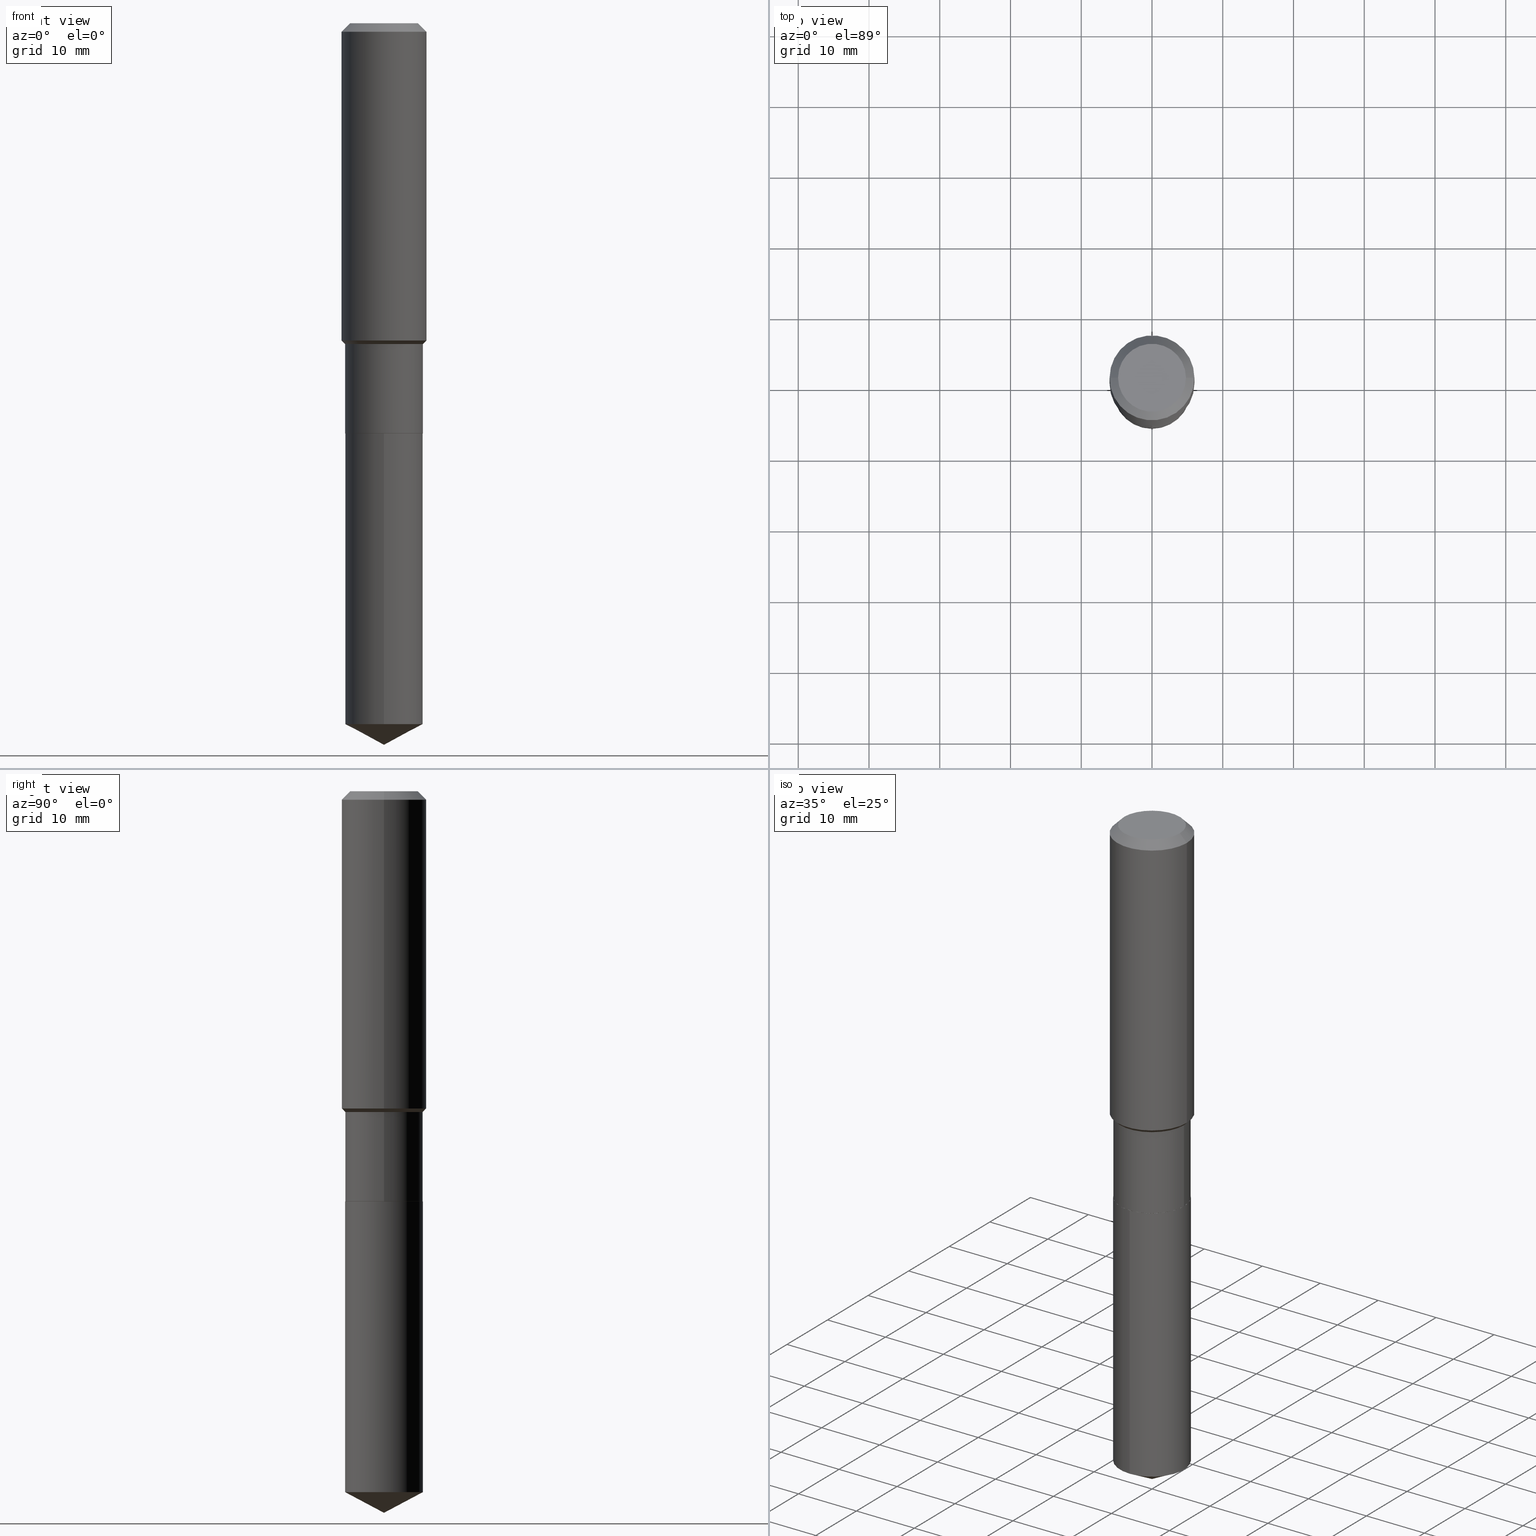
[diagram: canonical four-view strip — front | top / right | iso, engineering-drawing reading convention]
A machine part, canonical four-view strip (front | top / right | iso — engineering-drawing reading convention). The complete STEP part file that produces these views, byte-faithful:
ISO-10303-21;
HEADER;
FILE_DESCRIPTION (( 'STEP AP203' ),
    '1' );
FILE_NAME ('67680.STEP',
    '2024-04-25T09:13:41',
    ( '' ),
    ( '' ),
    'SwSTEP 2.0',
    'SolidWorks 2023',
    '' );
FILE_SCHEMA (( 'CONFIG_CONTROL_DESIGN' ));
ENDSEC;

DATA;
#1 = LINE ( 'NONE', #334, #179 ) ;
#2 = EDGE_LOOP ( 'NONE', ( #228, #254, #69, #374 ) ) ;
#3 = AXIS2_PLACEMENT_3D ( 'NONE', #81, #411, #446 ) ;
#4 = CC_DESIGN_SECURITY_CLASSIFICATION ( #346, ( #55 ) ) ;
#5 = EDGE_CURVE ( 'NONE', #361, #20, #455, .T. ) ;
#6 = CYLINDRICAL_SURFACE ( 'NONE', #468, 0.2165499999999999647 ) ;
#7 = ORIENTED_EDGE ( 'NONE', *, *, #82, .T. ) ;
#8 = PERSON_AND_ORGANIZATION_ROLE ( 'design_owner' ) ;
#9 = ORIENTED_EDGE ( 'NONE', *, *, #33, .F. ) ;
#10 = APPROVAL_STATUS ( 'not_yet_approved' ) ;
#11 = CIRCLE ( 'NONE', #54, 0.1889600000000000168 ) ;
#12 =( NAMED_UNIT ( * ) SI_UNIT ( $, .STERADIAN. ) SOLID_ANGLE_UNIT ( ) );
#13 = LINE ( 'NONE', #47, #466 ) ;
#14 = PERSON_AND_ORGANIZATION ( #187, #431 ) ;
#15 = FACE_OUTER_BOUND ( 'NONE', #120, .T. ) ;
#16 = ORIENTED_EDGE ( 'NONE', *, *, #373, .T. ) ;
#17 = AXIS2_PLACEMENT_3D ( 'NONE', #303, #269, #112 ) ;
#18 = CC_DESIGN_PERSON_AND_ORGANIZATION_ASSIGNMENT ( #122, #424, ( #55 ) ) ;
#19 = CARTESIAN_POINT ( 'NONE',  ( 4.365895459682324685E-29, -6.233341634236667556E-15, -1.785299999999999887 ) ) ;
#20 = VERTEX_POINT ( 'NONE', #115 ) ;
#21 = LINE ( 'NONE', #436, #430 ) ;
#22 = EDGE_CURVE ( 'NONE', #409, #284, #159, .T. ) ;
#23 = ORIENTED_EDGE ( 'NONE', *, *, #162, .F. ) ;
#24 = DIRECTION ( 'NONE',  ( 1.000000000000000000, -6.982962677686271444E-15, 0.000000000000000000 ) ) ;
#25 = AXIS2_PLACEMENT_3D ( 'NONE', #163, #49, #243 ) ;
#26 = ORIENTED_EDGE ( 'NONE', *, *, #386, .F. ) ;
#27 = EDGE_LOOP ( 'NONE', ( #132, #16, #156, #31 ) ) ;
#28 = ADVANCED_FACE ( 'NONE', ( #225 ), #273, .T. ) ;
#29 = LINE ( 'NONE', #150, #60 ) ;
#30 = LINE ( 'NONE', #137, #169 ) ;
#31 = ORIENTED_EDGE ( 'NONE', *, *, #164, .F. ) ;
#32 = DIRECTION ( 'NONE',  ( -2.445468806185136877E-29, 3.491481338843145188E-15, 1.000000000000000000 ) ) ;
#33 = EDGE_CURVE ( 'NONE', #186, #402, #152, .T. ) ;
#34 = ORIENTED_EDGE ( 'NONE', *, *, #190, .F. ) ;
#35 = CARTESIAN_POINT ( 'NONE',  ( -0.1889600000000000168, 1.401969416799070942E-15, 3.855188123706346622E-18 ) ) ;
#36 = DIRECTION ( 'NONE',  ( -1.000000000000000000, 6.982962677686265922E-15, -4.876176775795935793E-29 ) ) ;
#37 = ORIENTED_EDGE ( 'NONE', *, *, #63, .F. ) ;
#38 = DIRECTION ( 'NONE',  ( -2.445558120015569435E-29, 3.491353436354538463E-15, 1.000000000000000000 ) ) ;
#39 = VERTEX_POINT ( 'NONE', #91 ) ;
#40 = CC_DESIGN_PERSON_AND_ORGANIZATION_ASSIGNMENT ( #338, #8, ( #406 ) ) ;
#41 = FACE_OUTER_BOUND ( 'NONE', #289, .T. ) ;
#42 = ORIENTED_EDGE ( 'NONE', *, *, #83, .T. ) ;
#43 = CIRCLE ( 'NONE', #227, 0.2165500000000000203 ) ;
#44 = LOCAL_TIME ( 5, 13, 41.00000000000000000, #432 ) ;
#45 = CARTESIAN_POINT ( 'NONE',  ( 4.317841997640785659E-29, -6.164734025928398916E-15, -1.765649999999999720 ) ) ;
#46 = DIRECTION ( 'NONE',  ( -2.445558120015569435E-29, 3.491353436354538463E-15, 1.000000000000000000 ) ) ;
#47 = CARTESIAN_POINT ( 'NONE',  ( 0.2361999999999999933, -1.785387205520586782E-15, -0.04724000000000028177 ) ) ;
#48 = PERSON_AND_ORGANIZATION ( #187, #431 ) ;
#49 = DIRECTION ( 'NONE',  ( -2.445468806185136597E-29, 3.491481338843145583E-15, 1.000000000000000000 ) ) ;
#50 = CARTESIAN_POINT ( 'NONE',  ( -0.2361999999999999933, 1.484438206022545019E-15, -0.04724000000000028177 ) ) ;
#51 = CARTESIAN_POINT ( 'NONE',  ( 4.365895459682324685E-29, -6.233341634236667556E-15, -1.785299999999999887 ) ) ;
#52 = ADVANCED_FACE ( 'NONE', ( #240 ), #77, .T. ) ;
#53 = AXIS2_PLACEMENT_3D ( 'NONE', #62, #282, #176 ) ;
#54 = AXIS2_PLACEMENT_3D ( 'NONE', #191, #86, #192 ) ;
#55 = PRODUCT_DEFINITION_FORMATION_WITH_SPECIFIED_SOURCE ( 'ANY', '', #406, .NOT_KNOWN. ) ;
#56 = CARTESIAN_POINT ( 'NONE',  ( -0.2160500000000000198, -6.434671681330630643E-15, -2.283399999999999874 ) ) ;
#57 = CARTESIAN_POINT ( 'NONE',  ( 0.2165500000000000203, -9.482863316297978150E-15, -2.282900000000000151 ) ) ;
#58 = VERTEX_POINT ( 'NONE', #57 ) ;
#59 = CC_DESIGN_PERSON_AND_ORGANIZATION_ASSIGNMENT ( #48, #356, ( #405 ) ) ;
#60 = VECTOR ( 'NONE', #230, 39.37007874015748143 ) ;
#61 = DIRECTION ( 'NONE',  ( -6.982962677686265133E-15, -1.000000000000000000, 2.523064413451178124E-15 ) ) ;
#62 = CARTESIAN_POINT ( 'NONE',  ( 0.000000000000000000, 0.000000000000000000, 0.000000000000000000 ) ) ;
#63 = EDGE_CURVE ( 'NONE', #20, #58, #429, .T. ) ;
#64 = ORIENTED_EDGE ( 'NONE', *, *, #198, .T. ) ;
#65 = LINE ( 'NONE', #133, #78 ) ;
#66 = ORIENTED_EDGE ( 'NONE', *, *, #33, .T. ) ;
#67 = DIRECTION ( 'NONE',  ( -6.982962677686265922E-15, -1.000000000000000000, 3.541896320645543908E-15 ) ) ;
#68 = AXIS2_PLACEMENT_3D ( 'NONE', #45, #232, #378 ) ;
#69 = ORIENTED_EDGE ( 'NONE', *, *, #386, .T. ) ;
#70 = CARTESIAN_POINT ( 'NONE',  ( 0.2165499999999999647, -1.512160567852960823E-15, 1.055936080798609895E-29 ) ) ;
#71 = ORIENTED_EDGE ( 'NONE', *, *, #125, .F. ) ;
#72 = ADVANCED_FACE ( 'NONE', ( #315 ), #262, .T. ) ;
#73 = DIRECTION ( 'NONE',  ( 1.000000000000000000, -6.982962677686264344E-15, 0.000000000000000000 ) ) ;
#74 = APPLICATION_PROTOCOL_DEFINITION ( 'international standard', 'config_control_design', 1994, #140 ) ;
#75 = DIRECTION ( 'NONE',  ( -1.000000000000000000, 6.982962677686266711E-15, 0.000000000000000000 ) ) ;
#76 = DIRECTION ( 'NONE',  ( 1.000000000000000000, -6.982962677686266711E-15, 4.876176775795936353E-29 ) ) ;
#77 = CONICAL_SURFACE ( 'NONE', #313, 0.2165499999999999370, 0.7853981633974509435 ) ;
#78 = VECTOR ( 'NONE', #479, 39.37007874015748143 ) ;
#79 = ORIENTED_EDGE ( 'NONE', *, *, #427, .F. ) ;
#80 = CC_DESIGN_APPROVAL ( #375, ( #346 ) ) ;
#81 = CARTESIAN_POINT ( 'NONE',  ( 5.583983472043140562E-29, -7.972448489114438042E-15, -2.283399999999999874 ) ) ;
#82 = EDGE_CURVE ( 'NONE', #102, #58, #30, .T. ) ;
#83 = EDGE_CURVE ( 'NONE', #58, #154, #101, .T. ) ;
#84 = DIRECTION ( 'NONE',  ( 1.000000000000000000, -6.982962677686271444E-15, 0.000000000000000000 ) ) ;
#85 = ORIENTED_EDGE ( 'NONE', *, *, #351, .T. ) ;
#86 = DIRECTION ( 'NONE',  ( -2.445468806185136597E-29, 3.491481338843145583E-15, 1.000000000000000000 ) ) ;
#87 = CARTESIAN_POINT ( 'NONE',  ( 5.583983472043140562E-29, -7.972448489114438042E-15, -2.283399999999999874 ) ) ;
#88 = CIRCLE ( 'NONE', #285, 0.2165500000000000203 ) ;
#89 = PERSON_AND_ORGANIZATION_ROLE ( 'classification_officer' ) ;
#90 = DIRECTION ( 'NONE',  ( -0.7071067811865493491, 7.493145998870360471E-15, 0.7071067811865456854 ) ) ;
#91 = CARTESIAN_POINT ( 'NONE',  ( -1.512160567852865370E-15, -0.2165500000000135927, -3.900558322573707493 ) ) ;
#92 = APPROVAL_DATE_TIME ( #95, #375 ) ;
#93 = APPROVAL_STATUS ( 'not_yet_approved' ) ;
#94 = ADVANCED_FACE ( 'NONE', ( #435 ), #250, .T. ) ;
#95 = DATE_AND_TIME ( #123, #44 ) ;
#96 = CARTESIAN_POINT ( 'NONE',  ( 1.155239464041865506E-30, -1.649375784469511859E-16, -0.04724000000000028177 ) ) ;
#97 = CARTESIAN_POINT ( 'NONE',  ( 9.820627742546521636E-29, -1.402022799436891976E-14, -4.015699999999999825 ) ) ;
#98 = CARTESIAN_POINT ( 'NONE',  ( 5.582760737640048882E-29, -7.970702748445017327E-15, -2.282900000000000151 ) ) ;
#99 = DIRECTION ( 'NONE',  ( -6.982962677686265133E-15, -1.000000000000000000, 3.784596620176766988E-15 ) ) ;
#100 = EDGE_LOOP ( 'NONE', ( #213, #321, #181, #211 ) ) ;
#101 = LINE ( 'NONE', #70, #248 ) ;
#102 = VERTEX_POINT ( 'NONE', #212 ) ;
#103 = DIRECTION ( 'NONE',  ( 1.000000000000000000, -6.982962677686271444E-15, 0.000000000000000000 ) ) ;
#104 = VERTEX_POINT ( 'NONE', #317 ) ;
#105 = DIRECTION ( 'NONE',  ( -0.7071067811865453523, 2.468850131082234184E-15, -0.7071067811865496822 ) ) ;
#106 = EDGE_LOOP ( 'NONE', ( #215, #64, #7, #37 ) ) ;
#107 = ADVANCED_FACE ( 'NONE', ( #210 ), #318, .T. ) ;
#108 = CYLINDRICAL_SURFACE ( 'NONE', #326, 0.2362000000000001043 ) ;
#109 = VERTEX_POINT ( 'NONE', #359 ) ;
#110 = DIRECTION ( 'NONE',  ( 1.000000000000000000, -6.982962677686266711E-15, 4.876176775795935793E-29 ) ) ;
#111 = ORIENTED_EDGE ( 'NONE', *, *, #22, .T. ) ;
#112 = DIRECTION ( 'NONE',  ( 1.000000000000000000, -6.982962677686266711E-15, 0.000000000000000000 ) ) ;
#113 = AXIS2_PLACEMENT_3D ( 'NONE', #19, #252, #185 ) ;
#114 = CIRCLE ( 'NONE', #293, 0.2165499999999999370 ) ;
#115 = CARTESIAN_POINT ( 'NONE',  ( -0.2165500000000000203, -5.563341897052346134E-15, -2.282900000000000151 ) ) ;
#116 = ORIENTED_EDGE ( 'NONE', *, *, #297, .F. ) ;
#117 = DIRECTION ( 'NONE',  ( -2.445468806185136597E-29, 3.491481338843145583E-15, 1.000000000000000000 ) ) ;
#118 = CARTESIAN_POINT ( 'NONE',  ( -9.427742298522546243E-47, 1.346031739168365344E-32, 3.855188123715862256E-18 ) ) ;
#119 = CARTESIAN_POINT ( 'NONE',  ( 5.583983472043140562E-29, -7.972448489114438042E-15, -2.283399999999999874 ) ) ;
#120 = EDGE_LOOP ( 'NONE', ( #71, #183 ) ) ;
#121 =( GEOMETRIC_REPRESENTATION_CONTEXT ( 3 ) GLOBAL_UNCERTAINTY_ASSIGNED_CONTEXT ( ( #339 ) ) GLOBAL_UNIT_ASSIGNED_CONTEXT ( ( #398, #246, #12 ) ) REPRESENTATION_CONTEXT ( 'NONE', 'WORKASPACE' ) );
#122 = PERSON_AND_ORGANIZATION ( #187, #431 ) ;
#123 = CALENDAR_DATE ( 2024, 25, 4 ) ;
#124 = COORDINATED_UNIVERSAL_TIME_OFFSET ( 5, 0, .BEHIND. ) ;
#125 = EDGE_CURVE ( 'NONE', #102, #361, #353, .T. ) ;
#126 = PERSON_AND_ORGANIZATION ( #187, #431 ) ;
#127 = AXIS2_PLACEMENT_3D ( 'NONE', #301, #295, #199 ) ;
#128 = CARTESIAN_POINT ( 'NONE',  ( 5.583983472043140562E-29, -7.972448489114438042E-15, -2.283399999999999874 ) ) ;
#129 = APPROVAL_DATE_TIME ( #202, #478 ) ;
#130 = EDGE_CURVE ( 'NONE', #379, #104, #178, .T. ) ;
#131 = CARTESIAN_POINT ( 'NONE',  ( 9.538838139164029954E-29, -1.361851975576149405E-14, -3.900558322573707937 ) ) ;
#132 = ORIENTED_EDGE ( 'NONE', *, *, #146, .T. ) ;
#133 = CARTESIAN_POINT ( 'NONE',  ( 0.2362000000000001043, -1.649375784469496920E-15, 1.151752954443000508E-29 ) ) ;
#134 = ORIENTED_EDGE ( 'NONE', *, *, #287, .F. ) ;
#135 = CARTESIAN_POINT ( 'NONE',  ( 5.583983472043140562E-29, -7.972448489114438042E-15, -2.283399999999999874 ) ) ;
#136 = EDGE_LOOP ( 'NONE', ( #111, #400 ) ) ;
#137 = CARTESIAN_POINT ( 'NONE',  ( 0.2160500000000000198, -9.481117575628557435E-15, -2.283399999999999874 ) ) ;
#138 = EDGE_CURVE ( 'NONE', #402, #379, #65, .T. ) ;
#139 = VERTEX_POINT ( 'NONE', #222 ) ;
#140 = APPLICATION_CONTEXT ( 'configuration controlled 3d designs of mechanical parts and assemblies' ) ;
#141 = FACE_OUTER_BOUND ( 'NONE', #447, .T. ) ;
#142 = CONICAL_SURFACE ( 'NONE', #208, 74.04434902938389484, 1.082104136236488490 ) ;
#143 = CARTESIAN_POINT ( 'NONE',  ( 0.000000000000000000, 0.000000000000000000, 0.000000000000000000 ) ) ;
#144 = EDGE_LOOP ( 'NONE', ( #476, #223, #261, #236 ) ) ;
#145 = ORIENTED_EDGE ( 'NONE', *, *, #63, .T. ) ;
#146 = EDGE_CURVE ( 'NONE', #154, #109, #444, .T. ) ;
#147 = FACE_OUTER_BOUND ( 'NONE', #144, .T. ) ;
#148 = DIRECTION ( 'NONE',  ( 2.438088387897960049E-29, -3.491481338843145188E-15, -1.000000000000000000 ) ) ;
#149 = VERTEX_POINT ( 'NONE', #360 ) ;
#150 = CARTESIAN_POINT ( 'NONE',  ( -0.2165499999999999647, 1.538680294288496702E-15, -1.065195393794699783E-29 ) ) ;
#151 = CYLINDRICAL_SURFACE ( 'NONE', #127, 0.2165500000000000203 ) ;
#152 = CIRCLE ( 'NONE', #283, 0.2362000000000002153 ) ;
#153 = DIRECTION ( 'NONE',  ( -6.982962677686265133E-15, -1.000000000000000000, 2.523064413451178124E-15 ) ) ;
#154 = VERTEX_POINT ( 'NONE', #484 ) ;
#155 = DESIGN_CONTEXT ( 'detailed design', #229, 'design' ) ;
#156 = ORIENTED_EDGE ( 'NONE', *, *, #332, .F. ) ;
#157 = CC_DESIGN_PERSON_AND_ORGANIZATION_ASSIGNMENT ( #206, #348, ( #55 ) ) ;
#158 = CALENDAR_DATE ( 2024, 25, 4 ) ;
#159 = CIRCLE ( 'NONE', #452, 0.1889600000000000168 ) ;
#160 = AXIS2_PLACEMENT_3D ( 'NONE', #143, #188, #76 ) ;
#161 = DIRECTION ( 'NONE',  ( 1.000000000000000000, -6.982962677686266711E-15, 0.000000000000000000 ) ) ;
#162 = EDGE_CURVE ( 'NONE', #39, #139, #242, .T. ) ;
#163 = CARTESIAN_POINT ( 'NONE',  ( 5.583983472043140562E-29, -7.972448489114438042E-15, -2.283399999999999874 ) ) ;
#164 = EDGE_CURVE ( 'NONE', #154, #402, #21, .T. ) ;
#165 = PLANE ( 'NONE',  #255 ) ;
#166 = LENGTH_MEASURE_WITH_UNIT ( LENGTH_MEASURE( 0.02539999999999999897 ), #393 );
#167 = APPLICATION_PROTOCOL_DEFINITION ( 'international standard', 'config_control_design', 1994, #229 ) ;
#168 = DIRECTION ( 'NONE',  ( 0.7071067811865453523, -7.319954787623248157E-15, -0.7071067811865496822 ) ) ;
#169 = VECTOR ( 'NONE', #407, 39.37007874015748143 ) ;
#170 = VECTOR ( 'NONE', #490, 39.37007874015748854 ) ;
#171 = MANIFOLD_SOLID_BREP ( 'Body-Move/Copy2[2]', #473 ) ;
#172 = CC_DESIGN_APPROVAL ( #458, ( #55 ) ) ;
#173 = FACE_OUTER_BOUND ( 'NONE', #2, .T. ) ;
#174 = DIRECTION ( 'NONE',  ( -2.445558120015569435E-29, 3.491353436354538463E-15, 1.000000000000000000 ) ) ;
#175 = ORIENTED_EDGE ( 'NONE', *, *, #279, .T. ) ;
#176 = DIRECTION ( 'NONE',  ( 1.000000000000000000, -6.982962677686266711E-15, 4.876176775795935793E-29 ) ) ;
#177 = ORIENTED_EDGE ( 'NONE', *, *, #397, .F. ) ;
#178 = CIRCLE ( 'NONE', #217, 0.2361999999999999933 ) ;
#179 = VECTOR ( 'NONE', #184, 39.37007874015748143 ) ;
#180 = FACE_OUTER_BOUND ( 'NONE', #482, .T. ) ;
#181 = ORIENTED_EDGE ( 'NONE', *, *, #146, .F. ) ;
#182 = EDGE_CURVE ( 'NONE', #139, #299, #474, .T. ) ;
#183 = ORIENTED_EDGE ( 'NONE', *, *, #198, .F. ) ;
#184 = DIRECTION ( 'NONE',  ( -2.445558120015569435E-29, 3.491353436354538463E-15, 1.000000000000000000 ) ) ;
#185 = DIRECTION ( 'NONE',  ( 1.000000000000000000, -6.982962677686266711E-15, 0.000000000000000000 ) ) ;
#186 = VERTEX_POINT ( 'NONE', #439 ) ;
#187 = PERSON ( 'UNSPECIFIED', 'UNSPECIFIED', 'UNSPECIFIED', ('UNSPECIFIED'), ('UNSPECIFIED'), ('UNSPECIFIED') ) ;
#188 = DIRECTION ( 'NONE',  ( -2.445468806185136597E-29, 3.491481338843145583E-15, 1.000000000000000000 ) ) ;
#189 = ORIENTED_EDGE ( 'NONE', *, *, #279, .F. ) ;
#190 = EDGE_CURVE ( 'NONE', #149, #299, #453, .T. ) ;
#191 = CARTESIAN_POINT ( 'NONE',  ( -9.427742298522546243E-47, 1.346031739168365344E-32, 3.855188123715862256E-18 ) ) ;
#192 = DIRECTION ( 'NONE',  ( 1.000000000000000000, -6.982962677686266711E-15, 4.876185090822587894E-29 ) ) ;
#193 = PLANE ( 'NONE',  #475 ) ;
#194 = AXIS2_PLACEMENT_3D ( 'NONE', #364, #214, #324 ) ;
#195 = CIRCLE ( 'NONE', #422, 0.2165500000000000203 ) ;
#196 = ORIENTED_EDGE ( 'NONE', *, *, #463, .T. ) ;
#197 = DIRECTION ( 'NONE',  ( 1.000000000000000000, 0.000000000000000000, 0.000000000000000000 ) ) ;
#198 = EDGE_CURVE ( 'NONE', #361, #102, #437, .T. ) ;
#199 = DIRECTION ( 'NONE',  ( -6.982962677686265133E-15, -1.000000000000000000, 3.784596620176766988E-15 ) ) ;
#200 = EDGE_LOOP ( 'NONE', ( #441, #489, #267, #258 ) ) ;
#201 = DIRECTION ( 'NONE',  ( -2.438088387897960049E-29, 3.491481338843145188E-15, 1.000000000000000000 ) ) ;
#202 = DATE_AND_TIME ( #434, #396 ) ;
#203 = ADVANCED_FACE ( 'NONE', ( #180 ), #450, .F. ) ;
#204 = DIRECTION ( 'NONE',  ( -1.000000000000000000, 6.982962677686266711E-15, 0.000000000000000000 ) ) ;
#205 = APPROVAL_PERSON_ORGANIZATION ( #280, #478, #275 ) ;
#206 = PERSON_AND_ORGANIZATION ( #187, #431 ) ;
#207 = DIRECTION ( 'NONE',  ( -6.982962677686265133E-15, -1.000000000000000000, 3.784596620176766988E-15 ) ) ;
#208 = AXIS2_PLACEMENT_3D ( 'NONE', #413, #327, #221 ) ;
#209 = LOCAL_TIME ( 5, 13, 41.00000000000000000, #124 ) ;
#210 = FACE_OUTER_BOUND ( 'NONE', #445, .T. ) ;
#211 = ORIENTED_EDGE ( 'NONE', *, *, #83, .F. ) ;
#212 = CARTESIAN_POINT ( 'NONE',  ( 0.2160500000000000198, -9.481117575628557435E-15, -2.283399999999999874 ) ) ;
#213 = ORIENTED_EDGE ( 'NONE', *, *, #391, .T. ) ;
#214 = DIRECTION ( 'NONE',  ( -2.445468806185136597E-29, 3.491481338843145583E-15, 1.000000000000000000 ) ) ;
#215 = ORIENTED_EDGE ( 'NONE', *, *, #5, .F. ) ;
#216 = EDGE_CURVE ( 'NONE', #342, #39, #369, .T. ) ;
#217 = AXIS2_PLACEMENT_3D ( 'NONE', #247, #290, #219 ) ;
#218 = CIRCLE ( 'NONE', #17, 0.2361999999999999933 ) ;
#219 = DIRECTION ( 'NONE',  ( 1.000000000000000000, -6.982962677686266711E-15, 0.000000000000000000 ) ) ;
#220 = EDGE_LOOP ( 'NONE', ( #302, #196, #23 ) ) ;
#221 = DIRECTION ( 'NONE',  ( -6.982962677686265922E-15, -1.000000000000000000, 3.541896320645543908E-15 ) ) ;
#222 = CARTESIAN_POINT ( 'NONE',  ( 1.538680294288591957E-15, 0.2165499999999863368, -3.900558322573708381 ) ) ;
#223 = ORIENTED_EDGE ( 'NONE', *, *, #5, .T. ) ;
#224 = LINE ( 'NONE', #483, #461 ) ;
#225 = FACE_OUTER_BOUND ( 'NONE', #337, .T. ) ;
#226 = MECHANICAL_CONTEXT ( 'NONE', #140, 'mechanical' ) ;
#227 = AXIS2_PLACEMENT_3D ( 'NONE', #418, #268, #73 ) ;
#228 = ORIENTED_EDGE ( 'NONE', *, *, #343, .F. ) ;
#229 = APPLICATION_CONTEXT ( 'configuration controlled 3d designs of mechanical parts and assemblies' ) ;
#230 = DIRECTION ( 'NONE',  ( -2.445468806185136877E-29, 3.491481338843145188E-15, 1.000000000000000000 ) ) ;
#231 = CARTESIAN_POINT ( 'NONE',  ( 0.2362000000000002153, -7.814109810397897019E-15, -1.765649999999999720 ) ) ;
#232 = DIRECTION ( 'NONE',  ( -2.445468806185136597E-29, 3.491481338843145583E-15, 1.000000000000000000 ) ) ;
#233 = ADVANCED_FACE ( 'NONE', ( #372 ), #193, .F. ) ;
#234 = DIRECTION ( 'NONE',  ( -6.165590087286841551E-15, -0.8829475928589272105, 0.4694715627858901952 ) ) ;
#235 = AXIS2_PLACEMENT_3D ( 'NONE', #135, #471, #99 ) ;
#236 = ORIENTED_EDGE ( 'NONE', *, *, #82, .F. ) ;
#237 = DIRECTION ( 'NONE',  ( 1.000000000000000000, -6.982962677686266711E-15, 0.000000000000000000 ) ) ;
#238 = LINE ( 'NONE', #50, #390 ) ;
#239 = CC_DESIGN_DATE_AND_TIME_ASSIGNMENT ( #309, #308, ( #405 ) ) ;
#240 = FACE_OUTER_BOUND ( 'NONE', #27, .T. ) ;
#241 = DIRECTION ( 'NONE',  ( -2.445468806185136597E-29, 3.491481338843145583E-15, 1.000000000000000000 ) ) ;
#242 = CIRCLE ( 'NONE', #370, 0.2165500000000000203 ) ;
#243 = DIRECTION ( 'NONE',  ( 1.000000000000000000, -6.982962677686271444E-15, 0.000000000000000000 ) ) ;
#244 = APPROVAL_STATUS ( 'not_yet_approved' ) ;
#245 = PRODUCT_RELATED_PRODUCT_CATEGORY ( 'detail', '', ( #406 ) ) ;
#246 =( NAMED_UNIT ( * ) PLANE_ANGLE_UNIT ( ) SI_UNIT ( $, .RADIAN. ) );
#247 = CARTESIAN_POINT ( 'NONE',  ( 1.155239464041865506E-30, -1.649375784469511859E-16, -0.04724000000000028177 ) ) ;
#248 = VECTOR ( 'NONE', #399, 39.37007874015748143 ) ;
#249 = AXIS2_PLACEMENT_3D ( 'NONE', #288, #401, #24 ) ;
#250 = CYLINDRICAL_SURFACE ( 'NONE', #53, 0.2362000000000001043 ) ;
#251 = ADVANCED_FACE ( 'NONE', ( #333 ), #341, .T. ) ;
#252 = DIRECTION ( 'NONE',  ( -2.445468806185136597E-29, 3.491481338843145583E-15, 1.000000000000000000 ) ) ;
#253 = CARTESIAN_POINT ( 'NONE',  ( 1.538680294288552514E-15, 0.2165499999999920544, -2.283400000000000762 ) ) ;
#254 = ORIENTED_EDGE ( 'NONE', *, *, #22, .F. ) ;
#255 = AXIS2_PLACEMENT_3D ( 'NONE', #128, #201, #306 ) ;
#256 = APPROVAL_PERSON_ORGANIZATION ( #311, #458, #462 ) ;
#257 = LOCAL_TIME ( 5, 13, 41.00000000000000000, #305 ) ;
#258 = ORIENTED_EDGE ( 'NONE', *, *, #351, .F. ) ;
#259 = DIRECTION ( 'NONE',  ( 2.445468806185136597E-29, -3.491481338843145583E-15, -1.000000000000000000 ) ) ;
#260 = CARTESIAN_POINT ( 'NONE',  ( 1.538680294288592549E-15, 0.2165499999999920544, -2.283400000000000762 ) ) ;
#261 = ORIENTED_EDGE ( 'NONE', *, *, #391, .F. ) ;
#262 = CONICAL_SURFACE ( 'NONE', #300, 74.04434902938389484, 1.082104136236488490 ) ;
#263 = FACE_OUTER_BOUND ( 'NONE', #220, .T. ) ;
#264 = CIRCLE ( 'NONE', #68, 0.2362000000000002153 ) ;
#265 = FACE_OUTER_BOUND ( 'NONE', #330, .T. ) ;
#266 = CONICAL_SURFACE ( 'NONE', #371, 0.2361999999999999933, 0.7853981633974452814 ) ;
#267 = ORIENTED_EDGE ( 'NONE', *, *, #427, .T. ) ;
#268 = DIRECTION ( 'NONE',  ( -2.445468806185136597E-29, 3.491481338843145583E-15, 1.000000000000000000 ) ) ;
#269 = DIRECTION ( 'NONE',  ( -2.445468806185136597E-29, 3.491481338843145583E-15, 1.000000000000000000 ) ) ;
#270 = EDGE_CURVE ( 'NONE', #104, #379, #218, .T. ) ;
#271 = DIRECTION ( 'NONE',  ( -2.445468806185136597E-29, 3.491481338843145583E-15, 1.000000000000000000 ) ) ;
#272 = DIRECTION ( 'NONE',  ( 1.000000000000000000, -6.982962677686266711E-15, 4.876185090822587894E-29 ) ) ;
#273 = CYLINDRICAL_SURFACE ( 'NONE', #485, 0.2165500000000000203 ) ;
#274 = COORDINATED_UNIVERSAL_TIME_OFFSET ( 5, 0, .BEHIND. ) ;
#275 = APPROVAL_ROLE ( '' ) ;
#276 = SHAPE_DEFINITION_REPRESENTATION ( #454, #385 ) ;
#277 = DATE_AND_TIME ( #465, #363 ) ;
#278 = LINE ( 'NONE', #425, #395 ) ;
#279 = EDGE_CURVE ( 'NONE', #109, #154, #114, .T. ) ;
#280 = PERSON_AND_ORGANIZATION ( #187, #431 ) ;
#281 = DIRECTION ( 'NONE',  ( 0.7071067811865493491, -2.468850131082276388E-15, 0.7071067811865456854 ) ) ;
#282 = DIRECTION ( 'NONE',  ( -2.445468806185136597E-29, 3.491481338843145583E-15, 1.000000000000000000 ) ) ;
#283 = AXIS2_PLACEMENT_3D ( 'NONE', #469, #241, #237 ) ;
#284 = VERTEX_POINT ( 'NONE', #449 ) ;
#285 = AXIS2_PLACEMENT_3D ( 'NONE', #414, #38, #153 ) ;
#286 = ADVANCED_FACE ( 'NONE', ( #265 ), #108, .T. ) ;
#287 = EDGE_CURVE ( 'NONE', #139, #39, #88, .T. ) ;
#288 = CARTESIAN_POINT ( 'NONE',  ( 5.583983472043140562E-29, -7.972448489114438042E-15, -2.283399999999999874 ) ) ;
#289 = EDGE_LOOP ( 'NONE', ( #177, #145, #42, #189 ) ) ;
#290 = DIRECTION ( 'NONE',  ( -2.445468806185136597E-29, 3.491481338843145583E-15, 1.000000000000000000 ) ) ;
#291 = ORIENTED_EDGE ( 'NONE', *, *, #138, .T. ) ;
#292 = ORIENTED_EDGE ( 'NONE', *, *, #463, .F. ) ;
#293 = AXIS2_PLACEMENT_3D ( 'NONE', #456, #271, #336 ) ;
#294 = CARTESIAN_POINT ( 'NONE',  ( 1.155239464041865506E-30, -1.649375784469511859E-16, -0.04724000000000028177 ) ) ;
#295 = DIRECTION ( 'NONE',  ( -2.445558120015569435E-29, 3.491353436354538463E-15, 1.000000000000000000 ) ) ;
#296 = ORIENTED_EDGE ( 'NONE', *, *, #433, .T. ) ;
#297 = EDGE_CURVE ( 'NONE', #284, #409, #11, .T. ) ;
#298 = CARTESIAN_POINT ( 'NONE',  ( -4.713871149261273121E-47, 6.730158695841826722E-33, 1.927594061857931128E-18 ) ) ;
#299 = VERTEX_POINT ( 'NONE', #260 ) ;
#300 = AXIS2_PLACEMENT_3D ( 'NONE', #367, #481, #67 ) ;
#301 = CARTESIAN_POINT ( 'NONE',  ( 5.583983472043140562E-29, -7.972448489114438042E-15, -2.283399999999999874 ) ) ;
#302 = ORIENTED_EDGE ( 'NONE', *, *, #216, .F. ) ;
#303 = CARTESIAN_POINT ( 'NONE',  ( 1.155239464041865506E-30, -1.649375784469511859E-16, -0.04724000000000028177 ) ) ;
#304 = CARTESIAN_POINT ( 'NONE',  ( -0.2160500000000000198, -6.437320908504741844E-15, -2.283399999999999874 ) ) ;
#305 = COORDINATED_UNIVERSAL_TIME_OFFSET ( 5, 0, .BEHIND. ) ;
#306 = DIRECTION ( 'NONE',  ( 1.000000000000000000, -6.982962677686265922E-15, 4.876176775795935793E-29 ) ) ;
#307 = CONICAL_SURFACE ( 'NONE', #345, 0.2361999999999999933, 0.7853981633974452814 ) ;
#308 = DATE_TIME_ROLE ( 'creation_date' ) ;
#309 = DATE_AND_TIME ( #350, #209 ) ;
#310 = CARTESIAN_POINT ( 'NONE',  ( 0.2361999999999999933, -1.814313362916447440E-15, -0.04724000000000028177 ) ) ;
#311 = PERSON_AND_ORGANIZATION ( #187, #431 ) ;
#312 = ADVANCED_FACE ( 'NONE', ( #408 ), #151, .T. ) ;
#313 = AXIS2_PLACEMENT_3D ( 'NONE', #51, #347, #161 ) ;
#314 = DATE_AND_TIME ( #158, #257 ) ;
#315 = FACE_OUTER_BOUND ( 'NONE', #417, .T. ) ;
#316 = EDGE_LOOP ( 'NONE', ( #352, #296, #365, #384 ) ) ;
#317 = CARTESIAN_POINT ( 'NONE',  ( -0.2361999999999999933, -1.486533860322317535E-15, -0.04724000000000028177 ) ) ;
#318 = CONICAL_SURFACE ( 'NONE', #113, 0.2165499999999999370, 0.7853981633974509435 ) ;
#319 = ORIENTED_EDGE ( 'NONE', *, *, #130, .T. ) ;
#320 = DIRECTION ( 'NONE',  ( 1.000000000000000000, -6.982962677686264344E-15, 0.000000000000000000 ) ) ;
#321 = ORIENTED_EDGE ( 'NONE', *, *, #397, .T. ) ;
#322 = DIRECTION ( 'NONE',  ( -2.445468806185136597E-29, 3.491481338843145583E-15, 1.000000000000000000 ) ) ;
#323 = ORIENTED_EDGE ( 'NONE', *, *, #182, .T. ) ;
#324 = DIRECTION ( 'NONE',  ( 1.000000000000000000, -6.982962677686266711E-15, 0.000000000000000000 ) ) ;
#325 = CC_DESIGN_DATE_AND_TIME_ASSIGNMENT ( #277, #464, ( #346 ) ) ;
#326 = AXIS2_PLACEMENT_3D ( 'NONE', #419, #117, #110 ) ;
#327 = DIRECTION ( 'NONE',  ( -2.445558120015569435E-29, 3.491353436354538463E-15, 1.000000000000000000 ) ) ;
#328 = DIRECTION ( 'NONE',  ( 2.445468806185136597E-29, -3.491481338843145583E-15, -1.000000000000000000 ) ) ;
#329 = FACE_OUTER_BOUND ( 'NONE', #106, .T. ) ;
#330 = EDGE_LOOP ( 'NONE', ( #420, #66, #291, #457 ) ) ;
#331 = ADVANCED_FACE ( 'NONE', ( #329 ), #354, .T. ) ;
#332 = EDGE_CURVE ( 'NONE', #402, #186, #264, .T. ) ;
#333 = FACE_OUTER_BOUND ( 'NONE', #100, .T. ) ;
#334 = CARTESIAN_POINT ( 'NONE',  ( -1.512160567852905011E-15, -0.2165500000000079583, -2.283399999999998986 ) ) ;
#335 = VECTOR ( 'NONE', #174, 39.37007874015748143 ) ;
#336 = DIRECTION ( 'NONE',  ( 1.000000000000000000, -6.982962677686266711E-15, 0.000000000000000000 ) ) ;
#337 = EDGE_LOOP ( 'NONE', ( #472, #323, #34, #79 ) ) ;
#338 = PERSON_AND_ORGANIZATION ( #187, #431 ) ;
#339 = UNCERTAINTY_MEASURE_WITH_UNIT (LENGTH_MEASURE( 1.000000000000000082E-05 ), #398, 'distance_accuracy_value', 'NONE');
#340 = ADVANCED_FACE ( 'NONE', ( #41 ), #6, .T. ) ;
#341 = CYLINDRICAL_SURFACE ( 'NONE', #160, 0.2165499999999999647 ) ;
#342 = VERTEX_POINT ( 'NONE', #97 ) ;
#343 = EDGE_CURVE ( 'NONE', #284, #379, #13, .T. ) ;
#344 = SECURITY_CLASSIFICATION_LEVEL ( 'unclassified' ) ;
#345 = AXIS2_PLACEMENT_3D ( 'NONE', #294, #328, #75 ) ;
#346 = SECURITY_CLASSIFICATION ( '', '', #344 ) ;
#347 = DIRECTION ( 'NONE',  ( -2.445468806185136597E-29, 3.491481338843145583E-15, 1.000000000000000000 ) ) ;
#348 = PERSON_AND_ORGANIZATION_ROLE ( 'design_supplier' ) ;
#349 = DIRECTION ( 'NONE',  ( 1.000000000000000000, -6.982962677686266711E-15, 4.876176775795936353E-29 ) ) ;
#350 = CALENDAR_DATE ( 2024, 25, 4 ) ;
#351 = EDGE_CURVE ( 'NONE', #299, #149, #195, .T. ) ;
#352 = ORIENTED_EDGE ( 'NONE', *, *, #332, .T. ) ;
#353 = CIRCLE ( 'NONE', #388, 0.2160500000000000198 ) ;
#354 = CONICAL_SURFACE ( 'NONE', #382, 0.2160500000000000198, 0.7853981633975507526 ) ;
#355 = AXIS2_PLACEMENT_3D ( 'NONE', #448, #381, #197 ) ;
#356 = PERSON_AND_ORGANIZATION_ROLE ( 'creator' ) ;
#357 = ORIENTED_EDGE ( 'NONE', *, *, #216, .T. ) ;
#358 = DIMENSIONAL_EXPONENTS ( 1.000000000000000000, 0.000000000000000000, 0.000000000000000000, 0.000000000000000000, 0.000000000000000000, 0.000000000000000000, 0.000000000000000000 ) ;
#359 = CARTESIAN_POINT ( 'NONE',  ( -0.2165499999999999370, -5.563341897052346134E-15, -1.785299999999999887 ) ) ;
#360 = CARTESIAN_POINT ( 'NONE',  ( -1.512160567852905011E-15, -0.2165500000000079583, -2.283399999999998986 ) ) ;
#361 = VERTEX_POINT ( 'NONE', #56 ) ;
#362 = VECTOR ( 'NONE', #234, 39.37007874015748854 ) ;
#363 = LOCAL_TIME ( 5, 13, 41.00000000000000000, #274 ) ;
#364 = CARTESIAN_POINT ( 'NONE',  ( 4.365895459682324685E-29, -6.233341634236667556E-15, -1.785299999999999887 ) ) ;
#365 = ORIENTED_EDGE ( 'NONE', *, *, #130, .F. ) ;
#366 = ADVANCED_FACE ( 'NONE', ( #15 ), #165, .F. ) ;
#367 = CARTESIAN_POINT ( 'NONE',  ( -8.646139194529836467E-28, 1.234343396520861746E-13, 35.35437874015748605 ) ) ;
#368 = ORIENTED_EDGE ( 'NONE', *, *, #190, .T. ) ;
#369 = LINE ( 'NONE', #376, #362 ) ;
#370 = AXIS2_PLACEMENT_3D ( 'NONE', #131, #438, #61 ) ;
#371 = AXIS2_PLACEMENT_3D ( 'NONE', #96, #259, #204 ) ;
#372 = FACE_OUTER_BOUND ( 'NONE', #136, .T. ) ;
#373 = EDGE_CURVE ( 'NONE', #109, #186, #278, .T. ) ;
#374 = ORIENTED_EDGE ( 'NONE', *, *, #270, .T. ) ;
#375 = APPROVAL ( #10, 'UNSPECIFIED' ) ;
#376 = CARTESIAN_POINT ( 'NONE',  ( 9.820219864145700334E-29, -1.402081209945389088E-14, -4.015699999999999825 ) ) ;
#377 = ORIENTED_EDGE ( 'NONE', *, *, #373, .F. ) ;
#378 = DIRECTION ( 'NONE',  ( 1.000000000000000000, -6.982962677686266711E-15, 0.000000000000000000 ) ) ;
#379 = VERTEX_POINT ( 'NONE', #310 ) ;
#380 = AXIS2_PLACEMENT_3D ( 'NONE', #98, #322, #320 ) ;
#381 = DIRECTION ( 'NONE',  ( 0.000000000000000000, 0.000000000000000000, 1.000000000000000000 ) ) ;
#382 = AXIS2_PLACEMENT_3D ( 'NONE', #383, #416, #84 ) ;
#383 = CARTESIAN_POINT ( 'NONE',  ( 5.583983472043140562E-29, -7.972448489114438042E-15, -2.283399999999999874 ) ) ;
#384 = ORIENTED_EDGE ( 'NONE', *, *, #138, .F. ) ;
#385 = ADVANCED_BREP_SHAPE_REPRESENTATION ( '67680', ( #487, #171, #355 ), #121 ) ;
#386 = EDGE_CURVE ( 'NONE', #409, #104, #238, .T. ) ;
#387 = APPROVAL_DATE_TIME ( #314, #458 ) ;
#388 = AXIS2_PLACEMENT_3D ( 'NONE', #394, #442, #103 ) ;
#389 = DIRECTION ( 'NONE',  ( -2.445558120015569435E-29, 3.491353436354538463E-15, 1.000000000000000000 ) ) ;
#390 = VECTOR ( 'NONE', #105, 39.37007874015748143 ) ;
#391 = EDGE_CURVE ( 'NONE', #58, #20, #43, .T. ) ;
#392 = ADVANCED_FACE ( 'NONE', ( #263 ), #142, .T. ) ;
#393 =( LENGTH_UNIT ( ) NAMED_UNIT ( * ) SI_UNIT ( $, .METRE. ) );
#394 = CARTESIAN_POINT ( 'NONE',  ( 5.583983472043140562E-29, -7.972448489114438042E-15, -2.283399999999999874 ) ) ;
#395 = VECTOR ( 'NONE', #90, 39.37007874015748143 ) ;
#396 = LOCAL_TIME ( 5, 13, 41.00000000000000000, #460 ) ;
#397 = EDGE_CURVE ( 'NONE', #20, #109, #29, .T. ) ;
#398 =( CONVERSION_BASED_UNIT ( 'INCH', #166 ) LENGTH_UNIT ( ) NAMED_UNIT ( #358 ) );
#399 = DIRECTION ( 'NONE',  ( -2.445468806185136877E-29, 3.491481338843145188E-15, 1.000000000000000000 ) ) ;
#400 = ORIENTED_EDGE ( 'NONE', *, *, #297, .T. ) ;
#401 = DIRECTION ( 'NONE',  ( -2.445468806185136597E-29, 3.491481338843145583E-15, 1.000000000000000000 ) ) ;
#402 = VERTEX_POINT ( 'NONE', #231 ) ;
#403 = VECTOR ( 'NONE', #451, 39.37007874015748143 ) ;
#404 = ORIENTED_EDGE ( 'NONE', *, *, #343, .T. ) ;
#405 = PRODUCT_DEFINITION ( 'UNKNOWN', '', #55, #155 ) ;
#406 = PRODUCT ( '67680', '67680', '', ( #226 ) ) ;
#407 = DIRECTION ( 'NONE',  ( 0.7071067811866199593, -2.468850131083015945E-15, 0.7071067811864750752 ) ) ;
#408 = FACE_OUTER_BOUND ( 'NONE', #200, .T. ) ;
#409 = VERTEX_POINT ( 'NONE', #35 ) ;
#410 = CARTESIAN_POINT ( 'NONE',  ( 9.820631319158634367E-29, -1.402022799436891976E-14, -4.015699999999999825 ) ) ;
#411 = DIRECTION ( 'NONE',  ( 2.445558120015568875E-29, -3.491353436354538463E-15, -1.000000000000000000 ) ) ;
#412 = CONICAL_SURFACE ( 'NONE', #25, 0.2160500000000000198, 0.7853981633975507526 ) ;
#413 = CARTESIAN_POINT ( 'NONE',  ( -8.646139194529836467E-28, 1.234343396520861746E-13, 35.35437874015748605 ) ) ;
#414 = CARTESIAN_POINT ( 'NONE',  ( 9.538838139164029954E-29, -1.361851975576149405E-14, -3.900558322573707937 ) ) ;
#415 = DIRECTION ( 'NONE',  ( -2.445468806185136597E-29, 3.491481338843145583E-15, 1.000000000000000000 ) ) ;
#416 = DIRECTION ( 'NONE',  ( -2.445468806185136597E-29, 3.491481338843145583E-15, 1.000000000000000000 ) ) ;
#417 = EDGE_LOOP ( 'NONE', ( #292, #357, #134 ) ) ;
#418 = CARTESIAN_POINT ( 'NONE',  ( 5.582760737640048882E-29, -7.970702748445017327E-15, -2.282900000000000151 ) ) ;
#419 = CARTESIAN_POINT ( 'NONE',  ( 0.000000000000000000, 0.000000000000000000, 0.000000000000000000 ) ) ;
#420 = ORIENTED_EDGE ( 'NONE', *, *, #433, .F. ) ;
#421 = CC_DESIGN_PERSON_AND_ORGANIZATION_ASSIGNMENT ( #14, #89, ( #346 ) ) ;
#422 = AXIS2_PLACEMENT_3D ( 'NONE', #119, #389, #467 ) ;
#423 = CC_DESIGN_APPROVAL ( #478, ( #405 ) ) ;
#424 = PERSON_AND_ORGANIZATION_ROLE ( 'creator' ) ;
#425 = CARTESIAN_POINT ( 'NONE',  ( -0.2165499999999999370, -4.694661339948171249E-15, -1.785299999999999887 ) ) ;
#426 = APPROVAL_ROLE ( '' ) ;
#427 = EDGE_CURVE ( 'NONE', #39, #149, #1, .T. ) ;
#428 = DIRECTION ( 'NONE',  ( -2.445468806185136597E-29, 3.491481338843145583E-15, 1.000000000000000000 ) ) ;
#429 = CIRCLE ( 'NONE', #380, 0.2165500000000000203 ) ;
#430 = VECTOR ( 'NONE', #281, 39.37007874015748143 ) ;
#431 = ORGANIZATION ( 'UNSPECIFIED', 'UNSPECIFIED', '' ) ;
#432 = COORDINATED_UNIVERSAL_TIME_OFFSET ( 5, 0, .BEHIND. ) ;
#433 = EDGE_CURVE ( 'NONE', #186, #104, #224, .T. ) ;
#434 = CALENDAR_DATE ( 2024, 25, 4 ) ;
#435 = FACE_OUTER_BOUND ( 'NONE', #316, .T. ) ;
#436 = CARTESIAN_POINT ( 'NONE',  ( 0.2165499999999999370, -7.745502202089628379E-15, -1.785299999999999887 ) ) ;
#437 = CIRCLE ( 'NONE', #249, 0.2160500000000000198 ) ;
#438 = DIRECTION ( 'NONE',  ( -2.445558120015569435E-29, 3.491353436354538463E-15, 1.000000000000000000 ) ) ;
#439 = CARTESIAN_POINT ( 'NONE',  ( -0.2362000000000002153, -4.486432084063041733E-15, -1.765649999999999720 ) ) ;
#440 = ADVANCED_FACE ( 'NONE', ( #141 ), #307, .T. ) ;
#441 = ORIENTED_EDGE ( 'NONE', *, *, #182, .F. ) ;
#442 = DIRECTION ( 'NONE',  ( -2.445468806185136597E-29, 3.491481338843145583E-15, 1.000000000000000000 ) ) ;
#443 = CLOSED_SHELL ( 'NONE', ( #28, #392, #72, #312, #203 ) ) ;
#444 = CIRCLE ( 'NONE', #194, 0.2165499999999999370 ) ;
#445 = EDGE_LOOP ( 'NONE', ( #377, #175, #480, #9 ) ) ;
#446 = DIRECTION ( 'NONE',  ( 6.982962677686265922E-15, 1.000000000000000000, -3.491353436354538463E-15 ) ) ;
#447 = EDGE_LOOP ( 'NONE', ( #116, #404, #319, #26 ) ) ;
#448 = CARTESIAN_POINT ( 'NONE',  ( 0.000000000000000000, 0.000000000000000000, 0.000000000000000000 ) ) ;
#449 = CARTESIAN_POINT ( 'NONE',  ( 0.1889600000000000168, -1.540873453589747738E-15, 3.855188123725863225E-18 ) ) ;
#450 = PLANE ( 'NONE',  #3 ) ;
#451 = DIRECTION ( 'NONE',  ( -0.7071067811866199593, 7.493145998870616062E-15, 0.7071067811864750752 ) ) ;
#452 = AXIS2_PLACEMENT_3D ( 'NONE', #118, #415, #272 ) ;
#453 = CIRCLE ( 'NONE', #235, 0.2165500000000000203 ) ;
#454 = PRODUCT_DEFINITION_SHAPE ( 'NONE', 'NONE',  #405 ) ;
#455 = LINE ( 'NONE', #304, #403 ) ;
#456 = CARTESIAN_POINT ( 'NONE',  ( 4.365895459682324685E-29, -6.233341634236667556E-15, -1.785299999999999887 ) ) ;
#457 = ORIENTED_EDGE ( 'NONE', *, *, #270, .F. ) ;
#458 = APPROVAL ( #244, 'UNSPECIFIED' ) ;
#459 = CARTESIAN_POINT ( 'NONE',  ( 0.000000000000000000, 0.000000000000000000, 0.000000000000000000 ) ) ;
#460 = COORDINATED_UNIVERSAL_TIME_OFFSET ( 5, 0, .BEHIND. ) ;
#461 = VECTOR ( 'NONE', #32, 39.37007874015748143 ) ;
#462 = APPROVAL_ROLE ( '' ) ;
#463 = EDGE_CURVE ( 'NONE', #342, #139, #488, .T. ) ;
#464 = DATE_TIME_ROLE ( 'classification_date' ) ;
#465 = CALENDAR_DATE ( 2024, 25, 4 ) ;
#466 = VECTOR ( 'NONE', #168, 39.37007874015748143 ) ;
#467 = DIRECTION ( 'NONE',  ( -6.982962677686265133E-15, -1.000000000000000000, 3.784596620176766988E-15 ) ) ;
#468 = AXIS2_PLACEMENT_3D ( 'NONE', #459, #428, #349 ) ;
#469 = CARTESIAN_POINT ( 'NONE',  ( 4.317841997640785659E-29, -6.164734025928398916E-15, -1.765649999999999720 ) ) ;
#470 = ADVANCED_FACE ( 'NONE', ( #147 ), #412, .T. ) ;
#471 = DIRECTION ( 'NONE',  ( -2.445558120015569435E-29, 3.491353436354538463E-15, 1.000000000000000000 ) ) ;
#472 = ORIENTED_EDGE ( 'NONE', *, *, #162, .T. ) ;
#473 = CLOSED_SHELL ( 'NONE', ( #470, #440, #94, #52, #251, #340, #107, #286, #477, #233, #366, #331 ) ) ;
#474 = LINE ( 'NONE', #253, #335 ) ;
#475 = AXIS2_PLACEMENT_3D ( 'NONE', #298, #148, #36 ) ;
#476 = ORIENTED_EDGE ( 'NONE', *, *, #125, .T. ) ;
#477 = ADVANCED_FACE ( 'NONE', ( #173 ), #266, .T. ) ;
#478 = APPROVAL ( #93, 'UNSPECIFIED' ) ;
#479 = DIRECTION ( 'NONE',  ( -2.445468806185136877E-29, 3.491481338843145188E-15, 1.000000000000000000 ) ) ;
#480 = ORIENTED_EDGE ( 'NONE', *, *, #164, .T. ) ;
#481 = DIRECTION ( 'NONE',  ( -2.445558120015569435E-29, 3.491353436354538463E-15, 1.000000000000000000 ) ) ;
#482 = EDGE_LOOP ( 'NONE', ( #368, #85 ) ) ;
#483 = CARTESIAN_POINT ( 'NONE',  ( -0.2362000000000001043, 1.678301941865357380E-15, -1.161852468318209317E-29 ) ) ;
#484 = CARTESIAN_POINT ( 'NONE',  ( 0.2165499999999999370, -7.745502202089628379E-15, -1.785299999999999887 ) ) ;
#485 = AXIS2_PLACEMENT_3D ( 'NONE', #87, #46, #207 ) ;
#486 = APPROVAL_PERSON_ORGANIZATION ( #126, #375, #426 ) ;
#487 = MANIFOLD_SOLID_BREP ( 'Body-Move/Copy2[1]', #443 ) ;
#488 = LINE ( 'NONE', #410, #170 ) ;
#489 = ORIENTED_EDGE ( 'NONE', *, *, #287, .T. ) ;
#490 = DIRECTION ( 'NONE',  ( 6.273719981627772387E-15, 0.8829475928589306521, 0.4694715627858840334 ) ) ;
ENDSEC;
END-ISO-10303-21;
